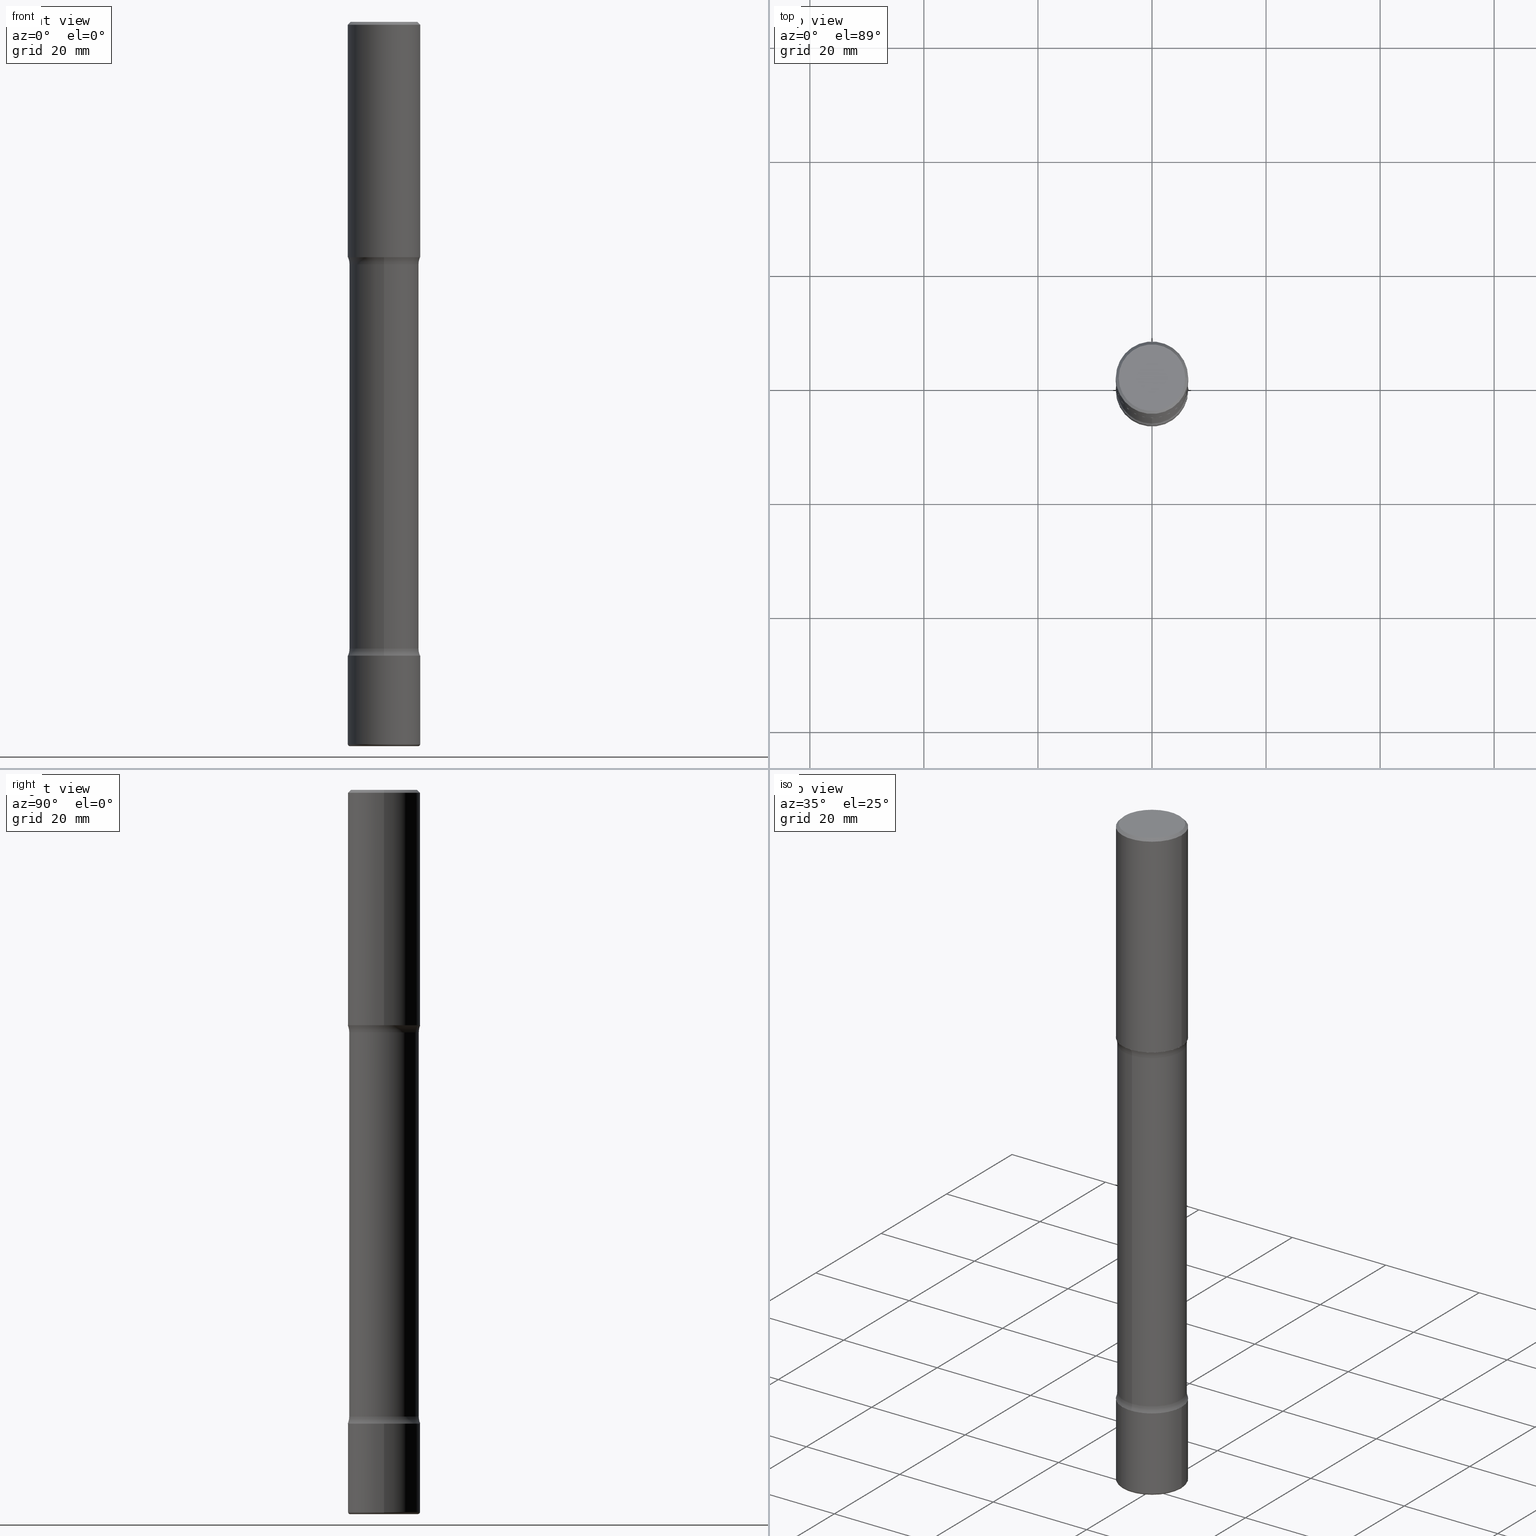
[diagram: canonical four-view strip — front | top / right | iso, engineering-drawing reading convention]
A machine part, canonical four-view strip (front | top / right | iso — engineering-drawing reading convention). The complete STEP part file that produces these views, byte-faithful:
ISO-10303-21;
HEADER;
FILE_DESCRIPTION (( 'STEP AP203' ),
    '1' );
FILE_NAME ('35797.STEP',
    '2024-03-01T23:27:21',
    ( '' ),
    ( '' ),
    'SwSTEP 2.0',
    'SolidWorks 2023',
    '' );
FILE_SCHEMA (( 'CONFIG_CONTROL_DESIGN' ));
ENDSEC;

DATA;
#1 = EDGE_CURVE ( 'NONE', #281, #101, #355, .T. ) ;
#2 = DIRECTION ( 'NONE',  ( 1.000000000000000000, -6.982962677686264344E-15, 0.000000000000000000 ) ) ;
#3 = CARTESIAN_POINT ( 'NONE',  ( 1.069892602705997261E-28, -1.527523085743876365E-14, -4.375000000000000000 ) ) ;
#4 = AXIS2_PLACEMENT_3D ( 'NONE', #510, #117, #244 ) ;
#5 = ORGANIZATION ( 'UNSPECIFIED', 'UNSPECIFIED', '' ) ;
#6 = ORIENTED_EDGE ( 'NONE', *, *, #492, .F. ) ;
#7 = LINE ( 'NONE', #396, #325 ) ;
#8 = ORIENTED_EDGE ( 'NONE', *, *, #426, .T. ) ;
#9 = PLANE ( 'NONE',  #135 ) ;
#10 = EDGE_LOOP ( 'NONE', ( #529, #390 ) ) ;
#11 = EDGE_CURVE ( 'NONE', #501, #197, #274, .T. ) ;
#12 = CARTESIAN_POINT ( 'NONE',  ( 1.675911042644828414E-15, 0.2399999999999828659, -5.000000000000000888 ) ) ;
#13 = AXIS2_PLACEMENT_3D ( 'NONE', #176, #509, #305 ) ;
#14 = AXIS2_PLACEMENT_3D ( 'NONE', #414, #169, #211 ) ;
#15 = ORIENTED_EDGE ( 'NONE', *, *, #154, .F. ) ;
#16 = PRODUCT_RELATED_PRODUCT_CATEGORY ( 'detail', '', ( #271 ) ) ;
#17 = DIRECTION ( 'NONE',  ( 6.860497997771530774E-15, 1.000000000000000000, 0.000000000000000000 ) ) ;
#18 = ORIENTED_EDGE ( 'NONE', *, *, #544, .F. ) ;
#19 = DIRECTION ( 'NONE',  ( 2.598079946832093802E-29, -3.272933499350004525E-15, -1.000000000000000000 ) ) ;
#20 = ADVANCED_FACE ( 'NONE', ( #105 ), #365, .T. ) ;
#21 = CARTESIAN_POINT ( 'NONE',  ( 3.554206173271715077E-29, -6.274663734226250712E-15, -1.625000000000000222 ) ) ;
#22 = DIRECTION ( 'NONE',  ( -2.445468806185136877E-29, 3.491481338843145188E-15, 1.000000000000000000 ) ) ;
#23 = CARTESIAN_POINT ( 'NONE',  ( 2.548781377355594003E-15, 0.3649999999999850586, -4.326010205144337206 ) ) ;
#24 = CIRCLE ( 'NONE', #471, 0.1250000000000001110 ) ;
#25 = CARTESIAN_POINT ( 'NONE',  ( 3.973886810050846970E-29, -5.673657175620112213E-15, -1.625000000000000000 ) ) ;
#26 = DIRECTION ( 'NONE',  ( -6.982962677686266711E-15, -1.000000000000000000, 3.491481338843145583E-15 ) ) ;
#27 =( LENGTH_UNIT ( ) NAMED_UNIT ( * ) SI_UNIT ( $, .METRE. ) );
#28 = FACE_OUTER_BOUND ( 'NONE', #526, .T. ) ;
#29 = ORIENTED_EDGE ( 'NONE', *, *, #152, .T. ) ;
#30 = EDGE_CURVE ( 'NONE', #197, #501, #383, .T. ) ;
#31 = EDGE_CURVE ( 'NONE', #430, #197, #346, .T. ) ;
#32 = TOROIDAL_SURFACE ( 'NONE', #348, 0.3650000000000004907, 0.1250000000000000555 ) ;
#33 = SECURITY_CLASSIFICATION ( '', '', #268 ) ;
#34 = ADVANCED_FACE ( 'NONE', ( #245 ), #407, .F. ) ;
#35 = FACE_OUTER_BOUND ( 'NONE', #363, .T. ) ;
#36 = ORIENTED_EDGE ( 'NONE', *, *, #347, .F. ) ;
#37 = APPROVAL_DATE_TIME ( #40, #191 ) ;
#38 = CARTESIAN_POINT ( 'NONE',  ( 1.675911042644809481E-15, 0.2399999999999848366, -4.326010205144337206 ) ) ;
#39 = ADVANCED_FACE ( 'NONE', ( #329 ), #89, .T. ) ;
#40 = DATE_AND_TIME ( #81, #444 ) ;
#41 = DIRECTION ( 'NONE',  ( -1.000000000000000000, 6.982962677686267499E-15, 0.000000000000000000 ) ) ;
#42 = CLOSED_SHELL ( 'NONE', ( #550, #39, #20, #485, #84, #162 ) ) ;
#43 = CONICAL_SURFACE ( 'NONE', #324, 0.2500000000000001110, 0.7853981633974476129 ) ;
#44 = DIRECTION ( 'NONE',  ( 2.598079946832093802E-29, -3.272933499350004525E-15, -1.000000000000000000 ) ) ;
#45 = FACE_OUTER_BOUND ( 'NONE', #10, .T. ) ;
#46 = CARTESIAN_POINT ( 'NONE',  ( -1.680822009453918926E-15, -0.2400000000000150902, -4.326010205144336318 ) ) ;
#47 = CC_DESIGN_DATE_AND_TIME_ASSIGNMENT ( #289, #449, ( #554 ) ) ;
#48 = ORIENTED_EDGE ( 'NONE', *, *, #489, .F. ) ;
#49 = DIRECTION ( 'NONE',  ( 2.598079946832093802E-29, -3.272933499350004525E-15, -1.000000000000000000 ) ) ;
#50 = CIRCLE ( 'NONE', #177, 0.2400000000000004075 ) ;
#51 =( GEOMETRIC_REPRESENTATION_CONTEXT ( 3 ) GLOBAL_UNCERTAINTY_ASSIGNED_CONTEXT ( ( #143 ) ) GLOBAL_UNIT_ASSIGNED_CONTEXT ( ( #250, #373, #543 ) ) REPRESENTATION_CONTEXT ( 'NONE', 'WORKASPACE' ) );
#52 = ORIENTED_EDGE ( 'NONE', *, *, #121, .T. ) ;
#53 = EDGE_CURVE ( 'NONE', #288, #201, #558, .T. ) ;
#54 = ORIENTED_EDGE ( 'NONE', *, *, #140, .T. ) ;
#55 = CARTESIAN_POINT ( 'NONE',  ( 0.2500000000000003886, -1.915077514355464672E-14, -4.984999999999999432 ) ) ;
#56 = ORIENTED_EDGE ( 'NONE', *, *, #30, .F. ) ;
#57 = DIRECTION ( 'NONE',  ( 6.860497997771529196E-15, 1.000000000000000000, 0.000000000000000000 ) ) ;
#58 = CIRCLE ( 'NONE', #69, 0.2500000000000008327 ) ;
#59 = LOCAL_TIME ( 18, 27, 21.00000000000000000, #552 ) ;
#60 = ORIENTED_EDGE ( 'NONE', *, *, #187, .T. ) ;
#61 = CC_DESIGN_PERSON_AND_ORGANIZATION_ASSIGNMENT ( #367, #371, ( #554 ) ) ;
#62 = DIRECTION ( 'NONE',  ( 2.598079946832093802E-29, -3.272933499350004525E-15, -1.000000000000000000 ) ) ;
#63 = CARTESIAN_POINT ( 'NONE',  ( 1.219066199883290567E-28, -1.740503447413308005E-14, -4.984999999999999432 ) ) ;
#64 = CALENDAR_DATE ( 2024, 1, 3 ) ;
#65 = DIRECTION ( 'NONE',  ( 1.000000000000000000, -6.982962677686269866E-15, 4.883557194083114022E-29 ) ) ;
#66 = ORIENTED_EDGE ( 'NONE', *, *, #432, .F. ) ;
#67 = APPROVAL_STATUS ( 'not_yet_approved' ) ;
#68 = DIRECTION ( 'NONE',  ( 2.598079946832093802E-29, -3.272933499350004525E-15, -1.000000000000000000 ) ) ;
#69 = AXIS2_PLACEMENT_3D ( 'NONE', #335, #68, #494 ) ;
#70 = ORIENTED_EDGE ( 'NONE', *, *, #556, .F. ) ;
#71 = PERSON_AND_ORGANIZATION ( #378, #5 ) ;
#72 = CYLINDRICAL_SURFACE ( 'NONE', #292, 0.2500000000000002220 ) ;
#73 = VERTEX_POINT ( 'NONE', #165 ) ;
#74 = ADVANCED_FACE ( 'NONE', ( #369 ), #216, .F. ) ;
#75 = EDGE_CURVE ( 'NONE', #288, #319, #24, .T. ) ;
#76 = LINE ( 'NONE', #293, #315 ) ;
#77 = ADVANCED_BREP_SHAPE_REPRESENTATION ( '35797', ( #539, #518, #343, #146 ), #51 ) ;
#78 = ORIENTED_EDGE ( 'NONE', *, *, #11, .T. ) ;
#79 = CC_DESIGN_DATE_AND_TIME_ASSIGNMENT ( #337, #180, ( #33 ) ) ;
#80 = AXIS2_PLACEMENT_3D ( 'NONE', #127, #342, #303 ) ;
#81 = CALENDAR_DATE ( 2024, 1, 3 ) ;
#82 = CIRCLE ( 'NONE', #525, 0.2500000000000003331 ) ;
#83 = DIRECTION ( 'NONE',  ( 6.982962677686265922E-15, 1.000000000000000000, -2.276539994720219546E-15 ) ) ;
#84 = ADVANCED_FACE ( 'NONE', ( #409 ), #72, .T. ) ;
#85 = EDGE_CURVE ( 'NONE', #86, #188, #228, .T. ) ;
#86 = VERTEX_POINT ( 'NONE', #505 ) ;
#87 = DIRECTION ( 'NONE',  ( 2.445468806185136597E-29, -3.491481338843145583E-15, -1.000000000000000000 ) ) ;
#88 = CARTESIAN_POINT ( 'NONE',  ( 1.057164662344605565E-28, -1.511489051672937447E-14, -4.326010205144336318 ) ) ;
#89 = TOROIDAL_SURFACE ( 'NONE', #397, 0.2350000000000001810, 0.01500000000000038629 ) ;
#90 = CIRCLE ( 'NONE', #535, 0.2399999999999999634 ) ;
#91 = FACE_OUTER_BOUND ( 'NONE', #167, .T. ) ;
#92 = DIRECTION ( 'NONE',  ( -2.445468806185136597E-29, 3.491481338843145583E-15, 1.000000000000000000 ) ) ;
#93 = VERTEX_POINT ( 'NONE', #328 ) ;
#94 = ORIENTED_EDGE ( 'NONE', *, *, #132, .F. ) ;
#95 = AXIS2_PLACEMENT_3D ( 'NONE', #491, #326, #108 ) ;
#96 = DIRECTION ( 'NONE',  ( 0.7071067811865469066, -7.319954787623252890E-15, -0.7071067811865479058 ) ) ;
#97 = EDGE_CURVE ( 'NONE', #188, #208, #76, .T. ) ;
#98 = ORIENTED_EDGE ( 'NONE', *, *, #241, .T. ) ;
#99 = DIRECTION ( 'NONE',  ( 1.000000000000000000, -6.982962677686267499E-15, 0.000000000000000000 ) ) ;
#100 = ORIENTED_EDGE ( 'NONE', *, *, #492, .T. ) ;
#101 = VERTEX_POINT ( 'NONE', #251 ) ;
#102 = DIRECTION ( 'NONE',  ( 1.000000000000000000, -6.982962677686267499E-15, 4.876176775795936353E-29 ) ) ;
#103 = DESIGN_CONTEXT ( 'detailed design', #528, 'design' ) ;
#104 = CIRCLE ( 'NONE', #478, 0.2399999999999999634 ) ;
#105 = FACE_OUTER_BOUND ( 'NONE', #296, .T. ) ;
#106 = EDGE_CURVE ( 'NONE', #232, #208, #218, .T. ) ;
#107 = PERSON_AND_ORGANIZATION ( #378, #5 ) ;
#108 = DIRECTION ( 'NONE',  ( -1.000000000000000000, 7.105427357601066545E-15, 0.000000000000000000 ) ) ;
#109 = CALENDAR_DATE ( 2024, 1, 3 ) ;
#110 = EDGE_LOOP ( 'NONE', ( #78, #540, #227, #18 ) ) ;
#111 = APPLICATION_PROTOCOL_DEFINITION ( 'international standard', 'config_control_design', 1994, #528 ) ;
#112 = CARTESIAN_POINT ( 'NONE',  ( 4.890937612370285420E-31, -6.982962677686308865E-17, -0.02000000000000005246 ) ) ;
#113 = CIRCLE ( 'NONE', #122, 0.2500000000000003331 ) ;
#114 = ORIENTED_EDGE ( 'NONE', *, *, #462, .T. ) ;
#115 = AXIS2_PLACEMENT_3D ( 'NONE', #233, #49, #235 ) ;
#116 = CARTESIAN_POINT ( 'NONE',  ( 0.000000000000000000, 0.000000000000000000, 0.000000000000000000 ) ) ;
#117 = DIRECTION ( 'NONE',  ( 2.598079946832093802E-29, -3.272933499350004525E-15, -1.000000000000000000 ) ) ;
#118 = ORIENTED_EDGE ( 'NONE', *, *, #511, .T. ) ;
#119 = ADVANCED_FACE ( 'NONE', ( #28 ), #43, .T. ) ;
#120 = DIRECTION ( 'NONE',  ( -2.445468806185136597E-29, 3.491481338843145583E-15, 1.000000000000000000 ) ) ;
#121 = EDGE_CURVE ( 'NONE', #139, #438, #50, .T. ) ;
#122 = AXIS2_PLACEMENT_3D ( 'NONE', #306, #226, #468 ) ;
#123 = ORIENTED_EDGE ( 'NONE', *, *, #460, .F. ) ;
#124 = CIRCLE ( 'NONE', #443, 0.01500000000000038629 ) ;
#125 = APPROVAL_ROLE ( '' ) ;
#126 = AXIS2_PLACEMENT_3D ( 'NONE', #142, #145, #99 ) ;
#127 = CARTESIAN_POINT ( 'NONE',  ( 1.069892602705997261E-28, -1.527523085743876365E-14, -4.375000000000000000 ) ) ;
#128 = CARTESIAN_POINT ( 'NONE',  ( 1.219066199883290567E-28, -1.740503447413308005E-14, -4.984999999999999432 ) ) ;
#129 = CALENDAR_DATE ( 2024, 1, 3 ) ;
#130 = CARTESIAN_POINT ( 'NONE',  ( -0.2500000000000001110, 1.675911042644704563E-15, -0.02000000000000005246 ) ) ;
#131 = CARTESIAN_POINT ( 'NONE',  ( -0.2500000000000003886, -1.562867763473282642E-14, -4.984999999999999432 ) ) ;
#132 = EDGE_CURVE ( 'NONE', #101, #281, #58, .T. ) ;
#133 = DATE_AND_TIME ( #421, #499 ) ;
#134 = CIRCLE ( 'NONE', #515, 0.2500000000000001110 ) ;
#135 = AXIS2_PLACEMENT_3D ( 'NONE', #354, #360, #527 ) ;
#136 = CARTESIAN_POINT ( 'NONE',  ( -0.2300000000000001210, 1.640996229256273111E-15, 4.268512490089056766E-18 ) ) ;
#137 = ORIENTED_EDGE ( 'NONE', *, *, #11, .F. ) ;
#138 = DIRECTION ( 'NONE',  ( -2.445468806185136597E-29, 3.491481338843145583E-15, 1.000000000000000000 ) ) ;
#139 = VERTEX_POINT ( 'NONE', #456 ) ;
#140 = EDGE_CURVE ( 'NONE', #73, #501, #124, .T. ) ;
#141 = ADVANCED_FACE ( 'NONE', ( #35 ), #32, .F. ) ;
#142 = CARTESIAN_POINT ( 'NONE',  ( 4.890937612370285420E-31, -6.982962677686308865E-17, -0.02000000000000005246 ) ) ;
#143 = UNCERTAINTY_MEASURE_WITH_UNIT (LENGTH_MEASURE( 1.000000000000000082E-05 ), #250, 'distance_accuracy_value', 'NONE');
#144 = ORIENTED_EDGE ( 'NONE', *, *, #187, .F. ) ;
#145 = DIRECTION ( 'NONE',  ( -2.445468806185136597E-29, 3.491481338843145583E-15, 1.000000000000000000 ) ) ;
#146 = AXIS2_PLACEMENT_3D ( 'NONE', #297, #332, #412 ) ;
#147 = ORIENTED_EDGE ( 'NONE', *, *, #511, .F. ) ;
#148 = DIRECTION ( 'NONE',  ( 6.982962677686265922E-15, 1.000000000000000000, -3.414809992080323205E-15 ) ) ;
#149 = EDGE_CURVE ( 'NONE', #395, #319, #104, .T. ) ;
#150 = ORIENTED_EDGE ( 'NONE', *, *, #321, .T. ) ;
#151 = DIRECTION ( 'NONE',  ( 2.598079946832093802E-29, -3.272933499350004525E-15, -1.000000000000000000 ) ) ;
#152 = EDGE_CURVE ( 'NONE', #93, #457, #415, .T. ) ;
#153 = ORIENTED_EDGE ( 'NONE', *, *, #460, .T. ) ;
#154 = EDGE_CURVE ( 'NONE', #457, #93, #384, .T. ) ;
#155 = DIRECTION ( 'NONE',  ( -2.445468806185136597E-29, 3.491481338843145583E-15, 1.000000000000000000 ) ) ;
#156 = TOROIDAL_SURFACE ( 'NONE', #463, 0.2350000000000001810, 0.01500000000000038629 ) ;
#157 = DIRECTION ( 'NONE',  ( 1.000000000000000000, -6.982962677686265922E-15, 0.000000000000000000 ) ) ;
#158 = CARTESIAN_POINT ( 'NONE',  ( -1.646519519465045286E-15, -0.2400000000000174771, -4.999999999999999112 ) ) ;
#159 = DIRECTION ( 'NONE',  ( 1.000000000000000000, -6.982962677686265922E-15, 4.876225828469306079E-29 ) ) ;
#160 = DIRECTION ( 'NONE',  ( 2.598079946832093241E-29, -3.272933499350004525E-15, -1.000000000000000000 ) ) ;
#161 = CYLINDRICAL_SURFACE ( 'NONE', #301, 0.2500000000000002220 ) ;
#162 = ADVANCED_FACE ( 'NONE', ( #382 ), #429, .F. ) ;
#163 = DIRECTION ( 'NONE',  ( 2.445468806185136597E-29, -3.491481338843145583E-15, -1.000000000000000000 ) ) ;
#164 = ORIENTED_EDGE ( 'NONE', *, *, #273, .T. ) ;
#165 = CARTESIAN_POINT ( 'NONE',  ( 0.2350000000000001255, -1.909840292347200004E-14, -5.000000000000000000 ) ) ;
#166 = AXIS2_PLACEMENT_3D ( 'NONE', #551, #295, #538 ) ;
#167 = EDGE_LOOP ( 'NONE', ( #436, #52, #114, #184 ) ) ;
#168 = CC_DESIGN_APPROVAL ( #191, ( #368 ) ) ;
#169 = DIRECTION ( 'NONE',  ( -2.445468806185136597E-29, 3.491481338843145583E-15, 1.000000000000000000 ) ) ;
#170 = CARTESIAN_POINT ( 'NONE',  ( 0.2350000000000001810, -1.904603070338935335E-14, -4.984999999999999432 ) ) ;
#171 = APPROVAL ( #493, 'UNSPECIFIED' ) ;
#172 = DIRECTION ( 'NONE',  ( 1.000000000000000000, -6.982962677686217012E-15, 0.000000000000000000 ) ) ;
#173 = EDGE_CURVE ( 'NONE', #201, #288, #546, .T. ) ;
#174 = ORIENTED_EDGE ( 'NONE', *, *, #544, .T. ) ;
#175 = PERSON_AND_ORGANIZATION ( #378, #5 ) ;
#176 = CARTESIAN_POINT ( 'NONE',  ( 1.069892602705997261E-28, -1.527523085743876365E-14, -4.375000000000000000 ) ) ;
#177 = AXIS2_PLACEMENT_3D ( 'NONE', #330, #416, #377 ) ;
#178 = CIRCLE ( 'NONE', #126, 0.2500000000000001110 ) ;
#179 = DIRECTION ( 'NONE',  ( -2.445468806185136597E-29, 3.491481338843145583E-15, 1.000000000000000000 ) ) ;
#180 = DATE_TIME_ROLE ( 'classification_date' ) ;
#181 = ADVANCED_FACE ( 'NONE', ( #182 ), #307, .T. ) ;
#182 = FACE_OUTER_BOUND ( 'NONE', #434, .T. ) ;
#183 = CARTESIAN_POINT ( 'NONE',  ( 1.222734403092568523E-28, -1.745740669421572989E-14, -5.000000000000000000 ) ) ;
#184 = ORIENTED_EDGE ( 'NONE', *, *, #149, .F. ) ;
#185 = AXIS2_PLACEMENT_3D ( 'NONE', #200, #198, #437 ) ;
#186 = DIRECTION ( 'NONE',  ( 1.000000000000000000, -6.982962677686264344E-15, 0.000000000000000000 ) ) ;
#187 = EDGE_CURVE ( 'NONE', #438, #101, #524, .T. ) ;
#188 = VERTEX_POINT ( 'NONE', #136 ) ;
#189 = FACE_OUTER_BOUND ( 'NONE', #193, .T. ) ;
#190 = ORIENTED_EDGE ( 'NONE', *, *, #53, .F. ) ;
#191 = APPROVAL ( #67, 'UNSPECIFIED' ) ;
#192 = LINE ( 'NONE', #435, #399 ) ;
#193 = EDGE_LOOP ( 'NONE', ( #420, #234, #54, #56 ) ) ;
#194 = AXIS2_PLACEMENT_3D ( 'NONE', #25, #160, #370 ) ;
#195 = CYLINDRICAL_SURFACE ( 'NONE', #479, 0.2500000000000002220 ) ;
#196 = CIRCLE ( 'NONE', #376, 0.1250000000000000555 ) ;
#197 = VERTEX_POINT ( 'NONE', #131 ) ;
#198 = DIRECTION ( 'NONE',  ( -2.445468806185136597E-29, 3.491481338843145583E-15, 1.000000000000000000 ) ) ;
#199 = VERTEX_POINT ( 'NONE', #559 ) ;
#200 = CARTESIAN_POINT ( 'NONE',  ( 0.000000000000000000, 0.000000000000000000, 0.000000000000000000 ) ) ;
#201 = VERTEX_POINT ( 'NONE', #387 ) ;
#202 = APPROVAL_DATE_TIME ( #243, #171 ) ;
#203 = AXIS2_PLACEMENT_3D ( 'NONE', #21, #322, #545 ) ;
#204 = AXIS2_PLACEMENT_3D ( 'NONE', #298, #299, #159 ) ;
#205 = VECTOR ( 'NONE', #22, 39.37007874015748143 ) ;
#206 = CC_DESIGN_APPROVAL ( #171, ( #554 ) ) ;
#207 = CC_DESIGN_PERSON_AND_ORGANIZATION_ASSIGNMENT ( #327, #490, ( #271 ) ) ;
#208 = VERTEX_POINT ( 'NONE', #130 ) ;
#209 = APPROVAL_ROLE ( '' ) ;
#210 = DIRECTION ( 'NONE',  ( 2.598079946832093802E-29, -3.272933499350004525E-15, -1.000000000000000000 ) ) ;
#211 = DIRECTION ( 'NONE',  ( 1.000000000000000000, -6.982962677686265922E-15, 4.876225828469306079E-29 ) ) ;
#212 = DIRECTION ( 'NONE',  ( -1.000000000000000000, 6.982962677686267499E-15, 0.000000000000000000 ) ) ;
#213 = EDGE_LOOP ( 'NONE', ( #520, #66, #60, #418 ) ) ;
#214 = DIRECTION ( 'NONE',  ( 1.000000000000000000, -6.982962677686269077E-15, 0.000000000000000000 ) ) ;
#215 = DIRECTION ( 'NONE',  ( -2.445468806185136877E-29, 3.491481338843145188E-15, 1.000000000000000000 ) ) ;
#216 = TOROIDAL_SURFACE ( 'NONE', #166, 0.3650000000000001577, 0.1250000000000000833 ) ;
#217 = LINE ( 'NONE', #158, #223 ) ;
#218 = LINE ( 'NONE', #254, #247 ) ;
#219 = EDGE_LOOP ( 'NONE', ( #98, #361, #137, #260 ) ) ;
#220 = DIRECTION ( 'NONE',  ( 1.000000000000000000, -6.982962677686265922E-15, 4.876176775795935793E-29 ) ) ;
#221 = DIRECTION ( 'NONE',  ( -2.438088387897960049E-29, 3.491481338843145188E-15, 1.000000000000000000 ) ) ;
#222 = VECTOR ( 'NONE', #341, 39.37007874015748143 ) ;
#223 = VECTOR ( 'NONE', #256, 39.37007874015748143 ) ;
#224 = PLANE ( 'NONE',  #300 ) ;
#225 = COORDINATED_UNIVERSAL_TIME_OFFSET ( 5, 0, .BEHIND. ) ;
#226 = DIRECTION ( 'NONE',  ( -2.445468806185136597E-29, 3.491481338843145583E-15, 1.000000000000000000 ) ) ;
#227 = ORIENTED_EDGE ( 'NONE', *, *, #152, .F. ) ;
#228 = CIRCLE ( 'NONE', #204, 0.2300000000000001210 ) ;
#229 = CIRCLE ( 'NONE', #14, 0.2300000000000001210 ) ;
#230 = DIRECTION ( 'NONE',  ( 1.000000000000000000, -6.982962677686269866E-15, 4.883557194083114022E-29 ) ) ;
#231 = PRODUCT_DEFINITION_SHAPE ( 'NONE', 'NONE',  #554 ) ;
#232 = VERTEX_POINT ( 'NONE', #422 ) ;
#233 = CARTESIAN_POINT ( 'NONE',  ( 1.232272599383003257E-28, -1.732081429453251623E-14, -5.000000000000000000 ) ) ;
#234 = ORIENTED_EDGE ( 'NONE', *, *, #402, .T. ) ;
#235 = DIRECTION ( 'NONE',  ( 6.982962677686265922E-15, 1.000000000000000000, -4.553079989440435148E-15 ) ) ;
#236 = VERTEX_POINT ( 'NONE', #553 ) ;
#237 = CARTESIAN_POINT ( 'NONE',  ( 3.681485576885634284E-29, -6.435004074935638315E-15, -1.673989794855664570 ) ) ;
#238 = AXIS2_PLACEMENT_3D ( 'NONE', #467, #138, #186 ) ;
#239 = ORIENTED_EDGE ( 'NONE', *, *, #1, .T. ) ;
#240 = CARTESIAN_POINT ( 'NONE',  ( 4.890937612370285420E-31, -6.982962677686308865E-17, -0.02000000000000005246 ) ) ;
#241 = EDGE_CURVE ( 'NONE', #73, #430, #357, .T. ) ;
#242 = ORIENTED_EDGE ( 'NONE', *, *, #1, .F. ) ;
#243 = DATE_AND_TIME ( #64, #472 ) ;
#244 = DIRECTION ( 'NONE',  ( 6.982962677686265133E-15, 1.000000000000000000, -2.185478394931408603E-15 ) ) ;
#245 = FACE_OUTER_BOUND ( 'NONE', #290, .T. ) ;
#246 = CARTESIAN_POINT ( 'NONE',  ( 0.2500000000000002220, -1.745740669421568255E-15, 1.219044193948984929E-29 ) ) ;
#247 = VECTOR ( 'NONE', #215, 39.37007874015748143 ) ;
#248 = CARTESIAN_POINT ( 'NONE',  ( 3.664470992122216789E-29, -6.459369928726877002E-15, -1.673989794855664570 ) ) ;
#249 = ORIENTED_EDGE ( 'NONE', *, *, #97, .F. ) ;
#250 =( CONVERSION_BASED_UNIT ( 'INCH', #323 ) LENGTH_UNIT ( ) NAMED_UNIT ( #441 ) );
#251 = CARTESIAN_POINT ( 'NONE',  ( 1.745740669421607896E-15, 0.2499999999999944766, -1.625000000000001110 ) ) ;
#252 = ORIENTED_EDGE ( 'NONE', *, *, #75, .T. ) ;
#253 = MECHANICAL_CONTEXT ( 'NONE', #500, 'mechanical' ) ;
#254 = CARTESIAN_POINT ( 'NONE',  ( -0.2500000000000002220, 1.776356839400252042E-15, -1.229733772563727566E-29 ) ) ;
#255 = EDGE_LOOP ( 'NONE', ( #29, #477 ) ) ;
#256 = DIRECTION ( 'NONE',  ( 2.598079946832093802E-29, -3.272933499350004525E-15, -1.000000000000000000 ) ) ;
#257 = DIRECTION ( 'NONE',  ( -0.7071067811865469066, 2.468850131082251144E-15, -0.7071067811865479058 ) ) ;
#258 = VECTOR ( 'NONE', #362, 39.37007874015748143 ) ;
#259 = CARTESIAN_POINT ( 'NONE',  ( 3.973886810050846970E-29, -5.673657175620112213E-15, -1.625000000000000000 ) ) ;
#260 = ORIENTED_EDGE ( 'NONE', *, *, #140, .F. ) ;
#261 = DIRECTION ( 'NONE',  ( -6.982962677686267499E-15, -1.000000000000000000, 0.000000000000000000 ) ) ;
#262 = PERSON_AND_ORGANIZATION ( #378, #5 ) ;
#263 = CARTESIAN_POINT ( 'NONE',  ( -1.715124499442852322E-15, -0.2500000000000070499, -1.624999999999999556 ) ) ;
#264 = AXIS2_PLACEMENT_3D ( 'NONE', #534, #286, #446 ) ;
#265 = CIRCLE ( 'NONE', #285, 0.2400000000000004075 ) ;
#266 = LOCAL_TIME ( 18, 27, 21.00000000000000000, #541 ) ;
#267 = DIRECTION ( 'NONE',  ( -2.445468806185136597E-29, 3.491481338843145583E-15, 1.000000000000000000 ) ) ;
#268 = SECURITY_CLASSIFICATION_LEVEL ( 'unclassified' ) ;
#269 = DIRECTION ( 'NONE',  ( -1.000000000000000000, 6.982962677686265922E-15, -4.876176775795935793E-29 ) ) ;
#270 = ORIENTED_EDGE ( 'NONE', *, *, #85, .F. ) ;
#271 = PRODUCT ( '35797', '35797', '', ( #253 ) ) ;
#272 = FACE_OUTER_BOUND ( 'NONE', #213, .T. ) ;
#273 = EDGE_CURVE ( 'NONE', #236, #199, #474, .T. ) ;
#274 = CIRCLE ( 'NONE', #339, 0.2500000000000001665 ) ;
#275 = ORIENTED_EDGE ( 'NONE', *, *, #347, .T. ) ;
#276 = CIRCLE ( 'NONE', #340, 0.1250000000000001110 ) ;
#277 = CC_DESIGN_SECURITY_CLASSIFICATION ( #33, ( #368 ) ) ;
#278 = FACE_OUTER_BOUND ( 'NONE', #309, .T. ) ;
#279 = ORIENTED_EDGE ( 'NONE', *, *, #85, .T. ) ;
#280 = CARTESIAN_POINT ( 'NONE',  ( -0.2350000000000001255, -1.570815444995615772E-14, -5.000000000000000000 ) ) ;
#281 = VERTEX_POINT ( 'NONE', #263 ) ;
#282 = CARTESIAN_POINT ( 'NONE',  ( 1.057912301191903975E-28, -1.510418390290645794E-14, -4.326010205144336318 ) ) ;
#283 = ORIENTED_EDGE ( 'NONE', *, *, #462, .F. ) ;
#284 = FACE_OUTER_BOUND ( 'NONE', #475, .T. ) ;
#285 = AXIS2_PLACEMENT_3D ( 'NONE', #237, #19, #148 ) ;
#286 = DIRECTION ( 'NONE',  ( 2.438088387897960049E-29, -3.491481338843145188E-15, -1.000000000000000000 ) ) ;
#287 = COORDINATED_UNIVERSAL_TIME_OFFSET ( 5, 0, .BEHIND. ) ;
#288 = VERTEX_POINT ( 'NONE', #519 ) ;
#289 = DATE_AND_TIME ( #109, #266 ) ;
#290 = EDGE_LOOP ( 'NONE', ( #94, #242 ) ) ;
#291 = APPROVAL_ROLE ( '' ) ;
#292 = AXIS2_PLACEMENT_3D ( 'NONE', #548, #120, #461 ) ;
#293 = CARTESIAN_POINT ( 'NONE',  ( -0.2500000000000001110, 1.675911042644704563E-15, -0.02000000000000005246 ) ) ;
#294 = ORIENTED_EDGE ( 'NONE', *, *, #30, .T. ) ;
#295 = DIRECTION ( 'NONE',  ( 2.598079946832093802E-29, -3.272933499350004525E-15, -1.000000000000000000 ) ) ;
#296 = EDGE_LOOP ( 'NONE', ( #516, #351 ) ) ;
#297 = CARTESIAN_POINT ( 'NONE',  ( 0.000000000000000000, 0.000000000000000000, 0.000000000000000000 ) ) ;
#298 = CARTESIAN_POINT ( 'NONE',  ( -1.043851414335219820E-46, 1.490343170380447200E-32, 4.268512490100411279E-18 ) ) ;
#299 = DIRECTION ( 'NONE',  ( -2.445468806185136597E-29, 3.491481338843145583E-15, 1.000000000000000000 ) ) ;
#300 = AXIS2_PLACEMENT_3D ( 'NONE', #259, #221, #220 ) ;
#301 = AXIS2_PLACEMENT_3D ( 'NONE', #116, #155, #375 ) ;
#302 = ORIENTED_EDGE ( 'NONE', *, *, #97, .T. ) ;
#303 = DIRECTION ( 'NONE',  ( 6.982962677686265133E-15, 1.000000000000000000, -2.185478394931408603E-15 ) ) ;
#304 = DIRECTION ( 'NONE',  ( -2.445468806185136597E-29, 3.491481338843145583E-15, 1.000000000000000000 ) ) ;
#305 = DIRECTION ( 'NONE',  ( -1.000000000000000000, 6.982962677686265922E-15, -4.876176775795935793E-29 ) ) ;
#306 = CARTESIAN_POINT ( 'NONE',  ( 3.973886810050846970E-29, -5.673657175620112213E-15, -1.625000000000000000 ) ) ;
#307 = CONICAL_SURFACE ( 'NONE', #507, 0.2500000000000001110, 0.7853981633974476129 ) ;
#308 = CARTESIAN_POINT ( 'NONE',  ( 1.606081415867842053E-15, 0.2300000000000001210, -8.009064516888736730E-16 ) ) ;
#309 = EDGE_LOOP ( 'NONE', ( #353, #393 ) ) ;
#310 = DIRECTION ( 'NONE',  ( -2.445468806185136877E-29, 3.491481338843145188E-15, 1.000000000000000000 ) ) ;
#311 = ORIENTED_EDGE ( 'NONE', *, *, #549, .T. ) ;
#312 = APPROVAL ( #427, 'UNSPECIFIED' ) ;
#313 = CARTESIAN_POINT ( 'NONE',  ( 1.675911042644743611E-15, 0.2399999999999939959, -1.673989794855665458 ) ) ;
#314 = EDGE_LOOP ( 'NONE', ( #484, #279 ) ) ;
#315 = VECTOR ( 'NONE', #257, 39.37007874015748854 ) ;
#316 = CYLINDRICAL_SURFACE ( 'NONE', #185, 0.2500000000000002220 ) ;
#317 = EDGE_LOOP ( 'NONE', ( #410, #311, #36, #283 ) ) ;
#318 = DIRECTION ( 'NONE',  ( -2.445468806185136597E-29, 3.491481338843145583E-15, 1.000000000000000000 ) ) ;
#319 = VERTEX_POINT ( 'NONE', #38 ) ;
#320 = FACE_OUTER_BOUND ( 'NONE', #317, .T. ) ;
#321 = EDGE_CURVE ( 'NONE', #232, #236, #113, .T. ) ;
#322 = DIRECTION ( 'NONE',  ( 2.598079946832093802E-29, -3.272933499350004525E-15, -1.000000000000000000 ) ) ;
#323 = LENGTH_MEASURE_WITH_UNIT ( LENGTH_MEASURE( 0.02539999999999999897 ), #27 );
#324 = AXIS2_PLACEMENT_3D ( 'NONE', #112, #163, #212 ) ;
#325 = VECTOR ( 'NONE', #96, 39.37007874015748854 ) ;
#326 = DIRECTION ( 'NONE',  ( 7.105427357601001859E-15, 1.000000000000000000, -3.491481338843145583E-15 ) ) ;
#327 = PERSON_AND_ORGANIZATION ( #378, #5 ) ;
#328 = CARTESIAN_POINT ( 'NONE',  ( 0.2500000000000002220, -1.702097152686033033E-14, -4.375000000000000000 ) ) ;
#329 = FACE_OUTER_BOUND ( 'NONE', #219, .T. ) ;
#330 = CARTESIAN_POINT ( 'NONE',  ( 3.681485576885634284E-29, -6.435004074935638315E-15, -1.673989794855664570 ) ) ;
#331 = ORIENTED_EDGE ( 'NONE', *, *, #451, .F. ) ;
#332 = DIRECTION ( 'NONE',  ( 0.000000000000000000, 0.000000000000000000, 1.000000000000000000 ) ) ;
#333 = CIRCLE ( 'NONE', #408, 0.2350000000000001255 ) ;
#334 = CARTESIAN_POINT ( 'NONE',  ( 1.219066199883290567E-28, -1.740503447413308005E-14, -4.984999999999999432 ) ) ;
#335 = CARTESIAN_POINT ( 'NONE',  ( 3.554206173271715077E-29, -6.274663734226250712E-15, -1.625000000000000222 ) ) ;
#336 = ADVANCED_FACE ( 'NONE', ( #428 ), #464, .F. ) ;
#337 = DATE_AND_TIME ( #129, #59 ) ;
#338 = DIRECTION ( 'NONE',  ( 6.982962677686265922E-15, 1.000000000000000000, -2.276539994720219546E-15 ) ) ;
#339 = AXIS2_PLACEMENT_3D ( 'NONE', #334, #487, #448 ) ;
#340 = AXIS2_PLACEMENT_3D ( 'NONE', #392, #530, #57 ) ;
#341 = DIRECTION ( 'NONE',  ( -2.445468806185136877E-29, 3.491481338843145188E-15, 1.000000000000000000 ) ) ;
#342 = DIRECTION ( 'NONE',  ( 2.598079946832093802E-29, -3.272933499350004525E-15, -1.000000000000000000 ) ) ;
#343 = MANIFOLD_SOLID_BREP ( 'Body-Move/Copy2[4]', #533 ) ;
#344 = PERSON_AND_ORGANIZATION ( #378, #5 ) ;
#345 = CARTESIAN_POINT ( 'NONE',  ( 4.890937612370285420E-31, -6.982962677686308865E-17, -0.02000000000000005246 ) ) ;
#346 = CIRCLE ( 'NONE', #95, 0.01500000000000038629 ) ;
#347 = EDGE_CURVE ( 'NONE', #319, #395, #90, .T. ) ;
#348 = AXIS2_PLACEMENT_3D ( 'NONE', #248, #210, #496 ) ;
#349 = ORIENTED_EDGE ( 'NONE', *, *, #106, .T. ) ;
#350 = CARTESIAN_POINT ( 'NONE',  ( 1.222734403092568523E-28, -1.745740669421572989E-14, -5.000000000000000000 ) ) ;
#351 = ORIENTED_EDGE ( 'NONE', *, *, #402, .F. ) ;
#352 = CARTESIAN_POINT ( 'NONE',  ( -0.2500000000000002220, -1.456377582638566980E-14, -4.375000000000000000 ) ) ;
#353 = ORIENTED_EDGE ( 'NONE', *, *, #53, .T. ) ;
#354 = CARTESIAN_POINT ( 'NONE',  ( 1.069892602705997261E-28, -1.527523085743876365E-14, -4.375000000000000000 ) ) ;
#355 = CIRCLE ( 'NONE', #203, 0.2500000000000008327 ) ;
#356 = ORIENTED_EDGE ( 'NONE', *, *, #106, .F. ) ;
#357 = CIRCLE ( 'NONE', #488, 0.2350000000000001255 ) ;
#358 = AXIS2_PLACEMENT_3D ( 'NONE', #476, #151, #431 ) ;
#359 = CC_DESIGN_PERSON_AND_ORGANIZATION_ASSIGNMENT ( #262, #380, ( #33 ) ) ;
#360 = DIRECTION ( 'NONE',  ( -2.598079946832093241E-29, 3.272933499350004525E-15, 1.000000000000000000 ) ) ;
#361 = ORIENTED_EDGE ( 'NONE', *, *, #31, .T. ) ;
#362 = DIRECTION ( 'NONE',  ( 2.598079946832093802E-29, -3.272933499350004525E-15, -1.000000000000000000 ) ) ;
#363 = EDGE_LOOP ( 'NONE', ( #413, #8, #239, #144 ) ) ;
#364 = CYLINDRICAL_SURFACE ( 'NONE', #115, 0.2400000000000001854 ) ;
#365 = PLANE ( 'NONE',  #264 ) ;
#366 = AXIS2_PLACEMENT_3D ( 'NONE', #513, #419, #261 ) ;
#367 = PERSON_AND_ORGANIZATION ( #378, #5 ) ;
#368 = PRODUCT_DEFINITION_FORMATION_WITH_SPECIFIED_SOURCE ( 'ANY', '', #271, .NOT_KNOWN. ) ;
#369 = FACE_OUTER_BOUND ( 'NONE', #398, .T. ) ;
#370 = DIRECTION ( 'NONE',  ( 6.982962677686265922E-15, 1.000000000000000000, -3.272933499350004525E-15 ) ) ;
#371 = PERSON_AND_ORGANIZATION_ROLE ( 'creator' ) ;
#372 = DIRECTION ( 'NONE',  ( 2.598079946832093802E-29, -3.272933499350004525E-15, -1.000000000000000000 ) ) ;
#373 =( NAMED_UNIT ( * ) PLANE_ANGLE_UNIT ( ) SI_UNIT ( $, .RADIAN. ) );
#374 = EDGE_LOOP ( 'NONE', ( #452, #349, #123, #403 ) ) ;
#375 = DIRECTION ( 'NONE',  ( 1.000000000000000000, -6.982962677686266711E-15, 4.876176775795935232E-29 ) ) ;
#376 = AXIS2_PLACEMENT_3D ( 'NONE', #401, #521, #17 ) ;
#377 = DIRECTION ( 'NONE',  ( 6.982962677686265922E-15, 1.000000000000000000, -3.414809992080323205E-15 ) ) ;
#378 = PERSON ( 'UNSPECIFIED', 'UNSPECIFIED', 'UNSPECIFIED', ('UNSPECIFIED'), ('UNSPECIFIED'), ('UNSPECIFIED') ) ;
#379 = DIRECTION ( 'NONE',  ( -1.000000000000000000, 6.982962677686265922E-15, -4.883557194083112340E-29 ) ) ;
#380 = PERSON_AND_ORGANIZATION_ROLE ( 'classification_officer' ) ;
#381 = DIRECTION ( 'NONE',  ( 1.000000000000000000, -6.982962677686258822E-15, 0.000000000000000000 ) ) ;
#382 = FACE_OUTER_BOUND ( 'NONE', #255, .T. ) ;
#383 = CIRCLE ( 'NONE', #453, 0.2500000000000001665 ) ;
#384 = CIRCLE ( 'NONE', #454, 0.2500000000000002220 ) ;
#385 = PERSON_AND_ORGANIZATION_ROLE ( 'design_supplier' ) ;
#386 = CARTESIAN_POINT ( 'NONE',  ( 1.232272599383003257E-28, -1.732081429453251623E-14, -5.000000000000000000 ) ) ;
#387 = CARTESIAN_POINT ( 'NONE',  ( -1.715124499442776986E-15, -0.2500000000000154321, -4.375000000000000000 ) ) ;
#388 = ADVANCED_FACE ( 'NONE', ( #91 ), #470, .T. ) ;
#389 = DIRECTION ( 'NONE',  ( 1.000000000000000000, -6.982962677686258822E-15, 0.000000000000000000 ) ) ;
#390 = ORIENTED_EDGE ( 'NONE', *, *, #321, .F. ) ;
#391 = APPROVAL_PERSON_ORGANIZATION ( #107, #171, #209 ) ;
#392 = CARTESIAN_POINT ( 'NONE',  ( -2.504081769186504086E-15, -0.3650000000000152567, -4.326010205144335430 ) ) ;
#393 = ORIENTED_EDGE ( 'NONE', *, *, #173, .T. ) ;
#394 = FACE_OUTER_BOUND ( 'NONE', #522, .T. ) ;
#395 = VERTEX_POINT ( 'NONE', #46 ) ;
#396 = CARTESIAN_POINT ( 'NONE',  ( 0.2500000000000001110, -1.784954126219746583E-15, -0.02000000000000005246 ) ) ;
#397 = AXIS2_PLACEMENT_3D ( 'NONE', #128, #304, #65 ) ;
#398 = EDGE_LOOP ( 'NONE', ( #459, #531, #482, #442 ) ) ;
#399 = VECTOR ( 'NONE', #310, 39.37007874015748143 ) ;
#400 = AXIS2_PLACEMENT_3D ( 'NONE', #282, #62, #495 ) ;
#401 = CARTESIAN_POINT ( 'NONE',  ( -2.504081769186575083E-15, -0.3650000000000069855, -1.673989794855663460 ) ) ;
#402 = EDGE_CURVE ( 'NONE', #430, #73, #333, .T. ) ;
#403 = ORIENTED_EDGE ( 'NONE', *, *, #273, .F. ) ;
#404 = LINE ( 'NONE', #12, #258 ) ;
#405 = DIRECTION ( 'NONE',  ( -2.445468806185136597E-29, 3.491481338843145583E-15, 1.000000000000000000 ) ) ;
#406 = APPLICATION_PROTOCOL_DEFINITION ( 'international standard', 'config_control_design', 1994, #500 ) ;
#407 = PLANE ( 'NONE',  #194 ) ;
#408 = AXIS2_PLACEMENT_3D ( 'NONE', #350, #267, #389 ) ;
#409 = FACE_OUTER_BOUND ( 'NONE', #480, .T. ) ;
#410 = ORIENTED_EDGE ( 'NONE', *, *, #432, .T. ) ;
#411 = ADVANCED_FACE ( 'NONE', ( #45 ), #224, .F. ) ;
#412 = DIRECTION ( 'NONE',  ( 1.000000000000000000, 0.000000000000000000, 0.000000000000000000 ) ) ;
#413 = ORIENTED_EDGE ( 'NONE', *, *, #121, .F. ) ;
#414 = CARTESIAN_POINT ( 'NONE',  ( -1.043851414335219820E-46, 1.490343170380447200E-32, 4.268512490100411279E-18 ) ) ;
#415 = CIRCLE ( 'NONE', #238, 0.2500000000000002220 ) ;
#416 = DIRECTION ( 'NONE',  ( 2.598079946832093802E-29, -3.272933499350004525E-15, -1.000000000000000000 ) ) ;
#417 = TOROIDAL_SURFACE ( 'NONE', #400, 0.3650000000000001577, 0.1250000000000000833 ) ;
#418 = ORIENTED_EDGE ( 'NONE', *, *, #132, .T. ) ;
#419 = DIRECTION ( 'NONE',  ( -1.000000000000000000, 6.982962677686265922E-15, -4.883557194083112340E-29 ) ) ;
#420 = ORIENTED_EDGE ( 'NONE', *, *, #31, .F. ) ;
#421 = CALENDAR_DATE ( 2024, 1, 3 ) ;
#422 = CARTESIAN_POINT ( 'NONE',  ( -0.2500000000000003331, -1.095386561798233741E-15, -1.625000000000000000 ) ) ;
#423 = PERSON_AND_ORGANIZATION_ROLE ( 'creator' ) ;
#424 = DIRECTION ( 'NONE',  ( 2.598079946832093802E-29, -3.272933499350004525E-15, -1.000000000000000000 ) ) ;
#425 = AXIS2_PLACEMENT_3D ( 'NONE', #308, #514, #269 ) ;
#426 = EDGE_CURVE ( 'NONE', #139, #281, #196, .T. ) ;
#427 = APPROVAL_STATUS ( 'not_yet_approved' ) ;
#428 = FACE_OUTER_BOUND ( 'NONE', #314, .T. ) ;
#429 = PLANE ( 'NONE',  #13 ) ;
#430 = VERTEX_POINT ( 'NONE', #280 ) ;
#431 = DIRECTION ( 'NONE',  ( 6.982962677686265922E-15, 1.000000000000000000, -3.272933499350004525E-15 ) ) ;
#432 = EDGE_CURVE ( 'NONE', #438, #139, #265, .T. ) ;
#433 = APPROVAL_PERSON_ORGANIZATION ( #506, #312, #125 ) ;
#434 = EDGE_LOOP ( 'NONE', ( #270, #118, #153, #249 ) ) ;
#435 = CARTESIAN_POINT ( 'NONE',  ( -0.2500000000000002220, 1.776356839400252042E-15, -1.229733772563727566E-29 ) ) ;
#436 = ORIENTED_EDGE ( 'NONE', *, *, #549, .F. ) ;
#437 = DIRECTION ( 'NONE',  ( 1.000000000000000000, -6.982962677686267499E-15, 4.876176775795936353E-29 ) ) ;
#438 = VERTEX_POINT ( 'NONE', #313 ) ;
#439 = ADVANCED_FACE ( 'NONE', ( #532 ), #316, .T. ) ;
#440 = CARTESIAN_POINT ( 'NONE',  ( 1.219066199883290567E-28, -1.740503447413308005E-14, -4.984999999999999432 ) ) ;
#441 = DIMENSIONAL_EXPONENTS ( 1.000000000000000000, 0.000000000000000000, 0.000000000000000000, 0.000000000000000000, 0.000000000000000000, 0.000000000000000000, 0.000000000000000000 ) ;
#442 = ORIENTED_EDGE ( 'NONE', *, *, #75, .F. ) ;
#443 = AXIS2_PLACEMENT_3D ( 'NONE', #170, #26, #172 ) ;
#444 = LOCAL_TIME ( 18, 27, 21.00000000000000000, #225 ) ;
#445 = LINE ( 'NONE', #246, #205 ) ;
#446 = DIRECTION ( 'NONE',  ( -1.000000000000000000, 6.982962677686265922E-15, -4.876176775795935793E-29 ) ) ;
#447 = CARTESIAN_POINT ( 'NONE',  ( 3.973886810050846970E-29, -5.673657175620112213E-15, -1.625000000000000000 ) ) ;
#448 = DIRECTION ( 'NONE',  ( 1.000000000000000000, -6.982962677686265922E-15, 0.000000000000000000 ) ) ;
#449 = DATE_TIME_ROLE ( 'creation_date' ) ;
#450 = CARTESIAN_POINT ( 'NONE',  ( 1.057164662344605565E-28, -1.511489051672937447E-14, -4.326010205144336318 ) ) ;
#451 = EDGE_CURVE ( 'NONE', #197, #457, #192, .T. ) ;
#452 = ORIENTED_EDGE ( 'NONE', *, *, #555, .T. ) ;
#453 = AXIS2_PLACEMENT_3D ( 'NONE', #63, #405, #157 ) ;
#454 = AXIS2_PLACEMENT_3D ( 'NONE', #3, #92, #2 ) ;
#455 = DIRECTION ( 'NONE',  ( -2.445468806185136597E-29, 3.491481338843145583E-15, 1.000000000000000000 ) ) ;
#456 = CARTESIAN_POINT ( 'NONE',  ( -1.680822009453992684E-15, -0.2400000000000068190, -1.673989794855663682 ) ) ;
#457 = VERTEX_POINT ( 'NONE', #352 ) ;
#458 = DIRECTION ( 'NONE',  ( -6.982962677686264344E-15, -1.000000000000000000, 0.000000000000000000 ) ) ;
#459 = ORIENTED_EDGE ( 'NONE', *, *, #173, .F. ) ;
#460 = EDGE_CURVE ( 'NONE', #199, #208, #134, .T. ) ;
#461 = DIRECTION ( 'NONE',  ( 1.000000000000000000, -6.982962677686266711E-15, 4.876176775795935232E-29 ) ) ;
#462 = EDGE_CURVE ( 'NONE', #438, #319, #404, .T. ) ;
#463 = AXIS2_PLACEMENT_3D ( 'NONE', #440, #523, #230 ) ;
#464 = PLANE ( 'NONE',  #425 ) ;
#465 = TOROIDAL_SURFACE ( 'NONE', #358, 0.3650000000000004907, 0.1250000000000000555 ) ;
#466 = COORDINATED_UNIVERSAL_TIME_OFFSET ( 5, 0, .BEHIND. ) ;
#467 = CARTESIAN_POINT ( 'NONE',  ( 1.069892602705997261E-28, -1.527523085743876365E-14, -4.375000000000000000 ) ) ;
#468 = DIRECTION ( 'NONE',  ( 1.000000000000000000, -6.982962677686269077E-15, 0.000000000000000000 ) ) ;
#469 = SHAPE_DEFINITION_REPRESENTATION ( #231, #77 ) ;
#470 = CYLINDRICAL_SURFACE ( 'NONE', #498, 0.2400000000000001854 ) ;
#471 = AXIS2_PLACEMENT_3D ( 'NONE', #23, #379, #458 ) ;
#472 = LOCAL_TIME ( 18, 27, 21.00000000000000000, #287 ) ;
#473 = CC_DESIGN_PERSON_AND_ORGANIZATION_ASSIGNMENT ( #175, #385, ( #368 ) ) ;
#474 = LINE ( 'NONE', #512, #222 ) ;
#475 = EDGE_LOOP ( 'NONE', ( #48, #190, #252, #275 ) ) ;
#476 = CARTESIAN_POINT ( 'NONE',  ( 3.664470992122216789E-29, -6.459369928726877002E-15, -1.673989794855664570 ) ) ;
#477 = ORIENTED_EDGE ( 'NONE', *, *, #154, .T. ) ;
#478 = AXIS2_PLACEMENT_3D ( 'NONE', #450, #372, #338 ) ;
#479 = AXIS2_PLACEMENT_3D ( 'NONE', #486, #318, #102 ) ;
#480 = EDGE_LOOP ( 'NONE', ( #331, #294, #174, #15 ) ) ;
#481 = DIRECTION ( 'NONE',  ( 1.000000000000000000, -6.982962677686267499E-15, 0.000000000000000000 ) ) ;
#482 = ORIENTED_EDGE ( 'NONE', *, *, #149, .T. ) ;
#483 = DIRECTION ( 'NONE',  ( -2.445468806185136597E-29, 3.491481338843145583E-15, 1.000000000000000000 ) ) ;
#484 = ORIENTED_EDGE ( 'NONE', *, *, #556, .T. ) ;
#485 = ADVANCED_FACE ( 'NONE', ( #189 ), #156, .T. ) ;
#486 = CARTESIAN_POINT ( 'NONE',  ( 0.000000000000000000, 0.000000000000000000, 0.000000000000000000 ) ) ;
#487 = DIRECTION ( 'NONE',  ( -2.445468806185136597E-29, 3.491481338843145583E-15, 1.000000000000000000 ) ) ;
#488 = AXIS2_PLACEMENT_3D ( 'NONE', #183, #179, #381 ) ;
#489 = EDGE_CURVE ( 'NONE', #201, #395, #276, .T. ) ;
#490 = PERSON_AND_ORGANIZATION_ROLE ( 'design_owner' ) ;
#491 = CARTESIAN_POINT ( 'NONE',  ( -0.2350000000000001810, -1.573525904509684234E-14, -4.984999999999999432 ) ) ;
#492 = EDGE_CURVE ( 'NONE', #208, #199, #178, .T. ) ;
#493 = APPROVAL_STATUS ( 'not_yet_approved' ) ;
#494 = DIRECTION ( 'NONE',  ( 6.982962677686265922E-15, 1.000000000000000000, -3.278217592397104818E-15 ) ) ;
#495 = DIRECTION ( 'NONE',  ( 6.982962677686265922E-15, 1.000000000000000000, -3.272933499350004920E-15 ) ) ;
#496 = DIRECTION ( 'NONE',  ( 6.982962677686265922E-15, 1.000000000000000000, -3.272933499350004525E-15 ) ) ;
#497 = CLOSED_SHELL ( 'NONE', ( #439, #181, #119, #336, #411, #504 ) ) ;
#498 = AXIS2_PLACEMENT_3D ( 'NONE', #386, #44, #560 ) ;
#499 = LOCAL_TIME ( 18, 27, 21.00000000000000000, #466 ) ;
#500 = APPLICATION_CONTEXT ( 'configuration controlled 3d designs of mechanical parts and assemblies' ) ;
#501 = VERTEX_POINT ( 'NONE', #55 ) ;
#502 = ADVANCED_FACE ( 'NONE', ( #272 ), #465, .F. ) ;
#503 = ADVANCED_FACE ( 'NONE', ( #320 ), #364, .T. ) ;
#504 = ADVANCED_FACE ( 'NONE', ( #394 ), #195, .T. ) ;
#505 = CARTESIAN_POINT ( 'NONE',  ( 0.2300000000000001210, -1.681434332853599997E-15, 4.268512490111905999E-18 ) ) ;
#506 = PERSON_AND_ORGANIZATION ( #378, #5 ) ;
#507 = AXIS2_PLACEMENT_3D ( 'NONE', #345, #87, #41 ) ;
#508 = CC_DESIGN_APPROVAL ( #312, ( #33 ) ) ;
#509 = DIRECTION ( 'NONE',  ( 2.438088387897960049E-29, -3.491481338843145188E-15, -1.000000000000000000 ) ) ;
#510 = CARTESIAN_POINT ( 'NONE',  ( 1.069892602705997261E-28, -1.527523085743876365E-14, -4.375000000000000000 ) ) ;
#511 = EDGE_CURVE ( 'NONE', #86, #199, #7, .T. ) ;
#512 = CARTESIAN_POINT ( 'NONE',  ( 0.2500000000000002220, -1.745740669421568453E-15, 1.219044193948985209E-29 ) ) ;
#513 = CARTESIAN_POINT ( 'NONE',  ( 2.548781377355527345E-15, 0.3649999999999939959, -1.673989794855665680 ) ) ;
#514 = DIRECTION ( 'NONE',  ( 2.438088387897960049E-29, -3.491481338843145188E-15, -1.000000000000000000 ) ) ;
#515 = AXIS2_PLACEMENT_3D ( 'NONE', #240, #483, #481 ) ;
#516 = ORIENTED_EDGE ( 'NONE', *, *, #241, .F. ) ;
#517 = ADVANCED_FACE ( 'NONE', ( #278 ), #9, .F. ) ;
#518 = MANIFOLD_SOLID_BREP ( 'Body-Move/Copy2[2]', #497 ) ;
#519 = CARTESIAN_POINT ( 'NONE',  ( 1.745740669421674949E-15, 0.2499999999999849010, -4.375000000000000888 ) ) ;
#520 = ORIENTED_EDGE ( 'NONE', *, *, #426, .F. ) ;
#521 = DIRECTION ( 'NONE',  ( 1.000000000000000000, -6.860497997771530774E-15, 4.843475318745101421E-29 ) ) ;
#522 = EDGE_LOOP ( 'NONE', ( #356, #150, #164, #6 ) ) ;
#523 = DIRECTION ( 'NONE',  ( -2.445468806185136597E-29, 3.491481338843145583E-15, 1.000000000000000000 ) ) ;
#524 = CIRCLE ( 'NONE', #366, 0.1250000000000000555 ) ;
#525 = AXIS2_PLACEMENT_3D ( 'NONE', #447, #455, #214 ) ;
#526 = EDGE_LOOP ( 'NONE', ( #147, #70, #302, #100 ) ) ;
#527 = DIRECTION ( 'NONE',  ( -6.982962677686265922E-15, -1.000000000000000000, 3.272933499350004525E-15 ) ) ;
#528 = APPLICATION_CONTEXT ( 'configuration controlled 3d designs of mechanical parts and assemblies' ) ;
#529 = ORIENTED_EDGE ( 'NONE', *, *, #555, .F. ) ;
#530 = DIRECTION ( 'NONE',  ( 1.000000000000000000, -6.860497997771530774E-15, 4.843475318745101421E-29 ) ) ;
#531 = ORIENTED_EDGE ( 'NONE', *, *, #489, .T. ) ;
#532 = FACE_OUTER_BOUND ( 'NONE', #374, .T. ) ;
#533 = CLOSED_SHELL ( 'NONE', ( #503, #74, #141, #502, #34, #517, #536, #388 ) ) ;
#534 = CARTESIAN_POINT ( 'NONE',  ( 1.222734403092568523E-28, -1.745740669421572989E-14, -5.000000000000000000 ) ) ;
#535 = AXIS2_PLACEMENT_3D ( 'NONE', #88, #424, #83 ) ;
#536 = ADVANCED_FACE ( 'NONE', ( #284 ), #417, .F. ) ;
#537 = APPROVAL_PERSON_ORGANIZATION ( #71, #191, #291 ) ;
#538 = DIRECTION ( 'NONE',  ( 6.982962677686265922E-15, 1.000000000000000000, -3.272933499350004920E-15 ) ) ;
#539 = MANIFOLD_SOLID_BREP ( 'Body-Move/Copy2[1]', #42 ) ;
#540 = ORIENTED_EDGE ( 'NONE', *, *, #451, .T. ) ;
#541 = COORDINATED_UNIVERSAL_TIME_OFFSET ( 5, 0, .BEHIND. ) ;
#542 = CC_DESIGN_PERSON_AND_ORGANIZATION_ASSIGNMENT ( #344, #423, ( #368 ) ) ;
#543 =( NAMED_UNIT ( * ) SI_UNIT ( $, .STERADIAN. ) SOLID_ANGLE_UNIT ( ) );
#544 = EDGE_CURVE ( 'NONE', #501, #93, #445, .T. ) ;
#545 = DIRECTION ( 'NONE',  ( 6.982962677686265922E-15, 1.000000000000000000, -3.278217592397104818E-15 ) ) ;
#546 = CIRCLE ( 'NONE', #80, 0.2500000000000002220 ) ;
#547 = FACE_OUTER_BOUND ( 'NONE', #110, .T. ) ;
#548 = CARTESIAN_POINT ( 'NONE',  ( 0.000000000000000000, 0.000000000000000000, 0.000000000000000000 ) ) ;
#549 = EDGE_CURVE ( 'NONE', #139, #395, #217, .T. ) ;
#550 = ADVANCED_FACE ( 'NONE', ( #547 ), #161, .T. ) ;
#551 = CARTESIAN_POINT ( 'NONE',  ( 1.057912301191903975E-28, -1.510418390290645794E-14, -4.326010205144336318 ) ) ;
#552 = COORDINATED_UNIVERSAL_TIME_OFFSET ( 5, 0, .BEHIND. ) ;
#553 = CARTESIAN_POINT ( 'NONE',  ( 0.2500000000000003331, -7.419397845041682046E-15, -1.625000000000000000 ) ) ;
#554 = PRODUCT_DEFINITION ( 'UNKNOWN', '', #368, #103 ) ;
#555 = EDGE_CURVE ( 'NONE', #236, #232, #82, .T. ) ;
#556 = EDGE_CURVE ( 'NONE', #188, #86, #229, .T. ) ;
#557 = APPROVAL_DATE_TIME ( #133, #312 ) ;
#558 = CIRCLE ( 'NONE', #4, 0.2500000000000002220 ) ;
#559 = CARTESIAN_POINT ( 'NONE',  ( 0.2500000000000001110, -1.784954126219746583E-15, -0.02000000000000005246 ) ) ;
#560 = DIRECTION ( 'NONE',  ( 6.982962677686265922E-15, 1.000000000000000000, -4.553079989440435148E-15 ) ) ;
ENDSEC;
END-ISO-10303-21;
